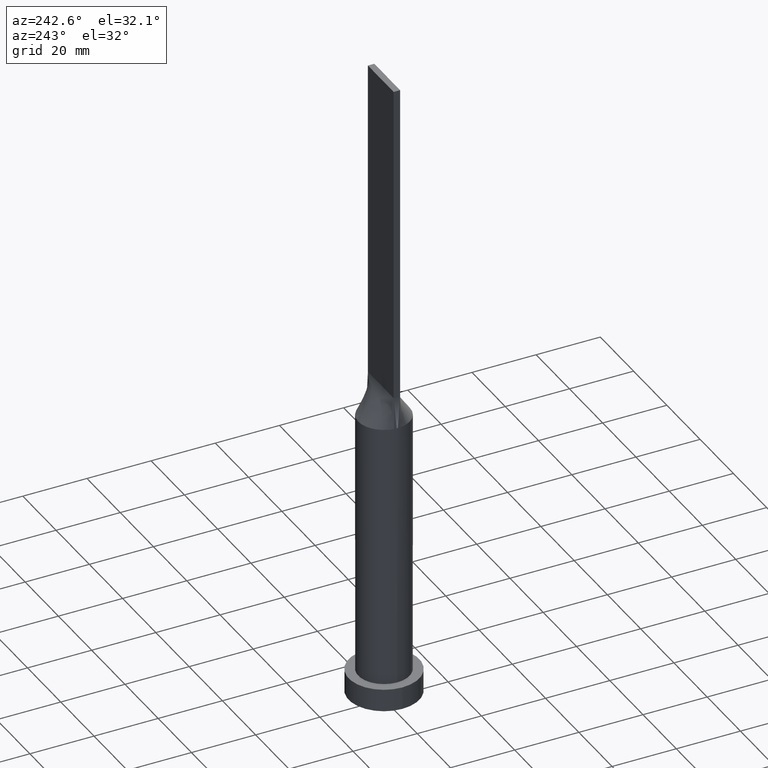
[diagram: clean part render]
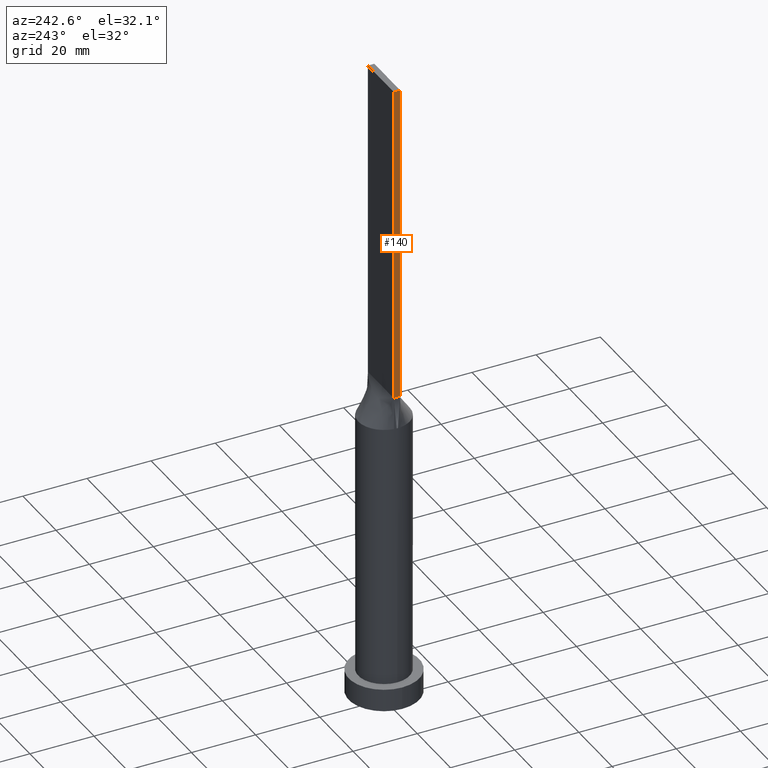
[diagram: same view with one face highlighted and labeled with its STEP entity id]
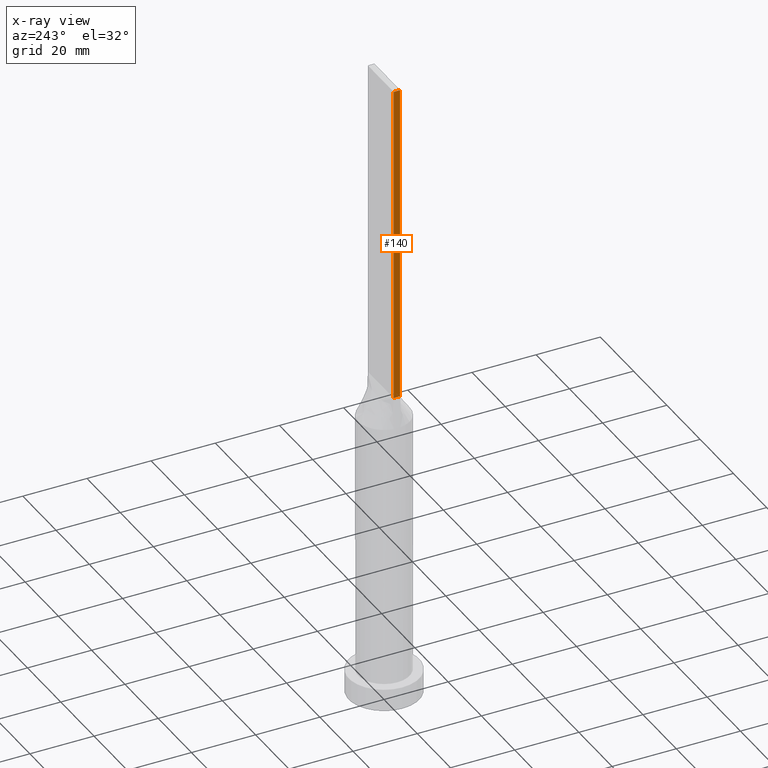
[diagram: x-ray of the same camera — body ghosted, the highlighted face saturated]
A machine part, auxiliary view. The second image highlights one B-rep face of the part: STEP entity #140.
The next image is the same camera in x-ray: the body ghosted, the highlighted face saturated — about 0% of this face is hidden behind the body in this view.
In plain terms, the highlighted planar face has unit normal (1, 0, -0).
Its self-contained STEP definition (entity closure, byte-faithful):
#1 = VERTEX_POINT ( 'NONE', #596 ) ;
#12 = LINE ( 'NONE', #212, #327 ) ;
#16 = EDGE_CURVE ( 'NONE', #24, #1, #154, .T. ) ;
#22 = FACE_OUTER_BOUND ( 'NONE', #573, .T. ) ;
#23 = CARTESIAN_POINT ( 'NONE',  ( -7.750000000000000000, 1.000000000000000000, 200.0000000000000000 ) ) ;
#24 = VERTEX_POINT ( 'NONE', #23 ) ;
#69 = PLANE ( 'NONE',  #199 ) ;
#86 = CARTESIAN_POINT ( 'NONE',  ( -7.750000000000000000, -0.9999999999999986677, 100.0000000000000000 ) ) ;
#140 = ADVANCED_FACE ( 'NONE', ( #22 ), #69, .F. ) ;
#154 = LINE ( 'NONE', #517, #398 ) ;
#184 = EDGE_CURVE ( 'NONE', #24, #503, #12, .T. ) ;
#193 = CARTESIAN_POINT ( 'NONE',  ( -7.750000000000000000, 1.000000000000000000, 100.0000000000000000 ) ) ;
#199 = AXIS2_PLACEMENT_3D ( 'NONE', #568, #502, #276 ) ;
#212 = CARTESIAN_POINT ( 'NONE',  ( -7.750000000000000000, 1.000000000000000000, 200.0000000000000000 ) ) ;
#246 = VECTOR ( 'NONE', #366, 1000.000000000000000 ) ;
#276 = DIRECTION ( 'NONE',  ( -0.000000000000000000, 0.000000000000000000, -1.000000000000000000 ) ) ;
#297 = EDGE_CURVE ( 'NONE', #503, #518, #496, .T. ) ;
#327 = VECTOR ( 'NONE', #467, 1000.000000000000000 ) ;
#337 = DIRECTION ( 'NONE',  ( -0.000000000000000000, -0.000000000000000000, -1.000000000000000000 ) ) ;
#366 = DIRECTION ( 'NONE',  ( -0.000000000000000000, -0.000000000000000000, -1.000000000000000000 ) ) ;
#381 = ORIENTED_EDGE ( 'NONE', *, *, #584, .T. ) ;
#394 = DIRECTION ( 'NONE',  ( 0.000000000000000000, -1.000000000000000000, 0.000000000000000000 ) ) ;
#398 = VECTOR ( 'NONE', #337, 1000.000000000000000 ) ;
#402 = LINE ( 'NONE', #193, #603 ) ;
#409 = CARTESIAN_POINT ( 'NONE',  ( -7.750000000000000000, -0.9999999999999986677, 200.0000000000000000 ) ) ;
#415 = ORIENTED_EDGE ( 'NONE', *, *, #16, .T. ) ;
#432 = CARTESIAN_POINT ( 'NONE',  ( -7.750000000000000000, -0.9999999999999986677, 200.0000000000000000 ) ) ;
#456 = ORIENTED_EDGE ( 'NONE', *, *, #184, .F. ) ;
#467 = DIRECTION ( 'NONE',  ( 0.000000000000000000, -1.000000000000000000, 0.000000000000000000 ) ) ;
#496 = LINE ( 'NONE', #409, #246 ) ;
#502 = DIRECTION ( 'NONE',  ( 1.000000000000000000, 0.000000000000000000, -0.000000000000000000 ) ) ;
#503 = VERTEX_POINT ( 'NONE', #432 ) ;
#511 = ORIENTED_EDGE ( 'NONE', *, *, #297, .F. ) ;
#517 = CARTESIAN_POINT ( 'NONE',  ( -7.750000000000000000, 1.000000000000000000, 200.0000000000000000 ) ) ;
#518 = VERTEX_POINT ( 'NONE', #86 ) ;
#568 = CARTESIAN_POINT ( 'NONE',  ( -7.750000000000000000, 1.000000000000000000, 200.0000000000000000 ) ) ;
#573 = EDGE_LOOP ( 'NONE', ( #381, #511, #456, #415 ) ) ;
#584 = EDGE_CURVE ( 'NONE', #1, #518, #402, .T. ) ;
#596 = CARTESIAN_POINT ( 'NONE',  ( -7.750000000000000000, 1.000000000000000000, 100.0000000000000000 ) ) ;
#603 = VECTOR ( 'NONE', #394, 1000.000000000000000 ) ;